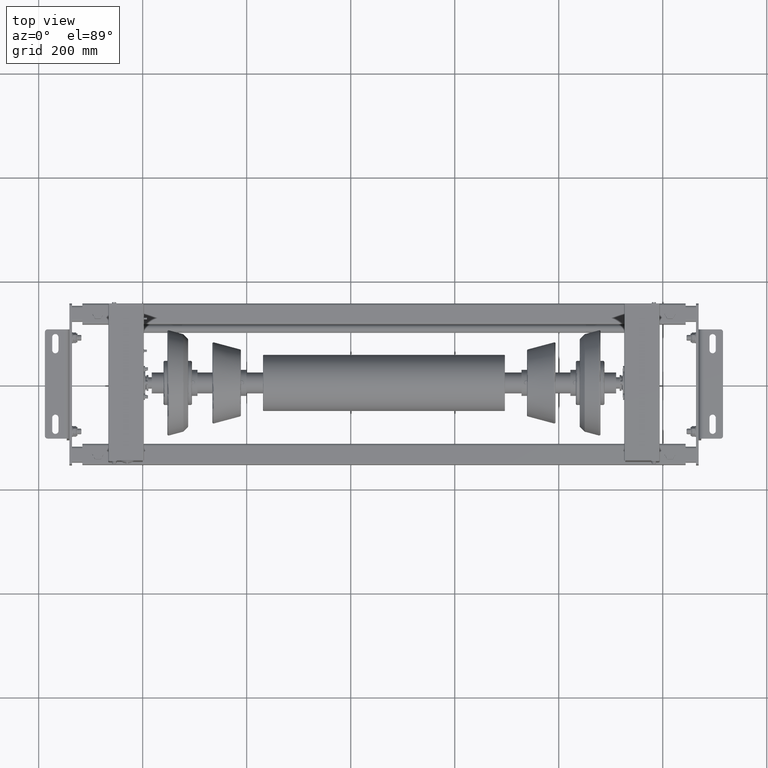
[diagram: clean part render]
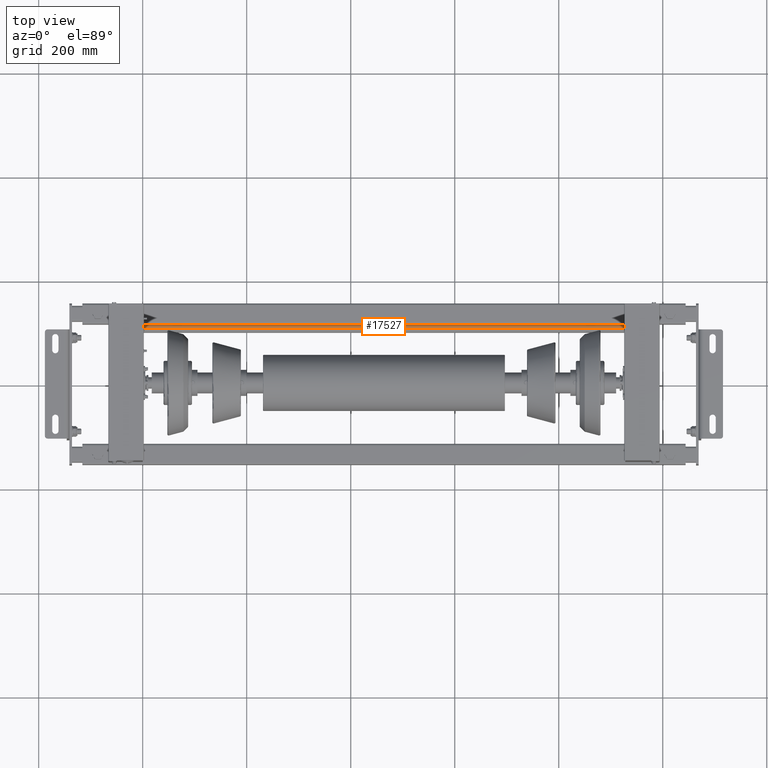
[diagram: same view with one face highlighted and labeled with its STEP entity id]
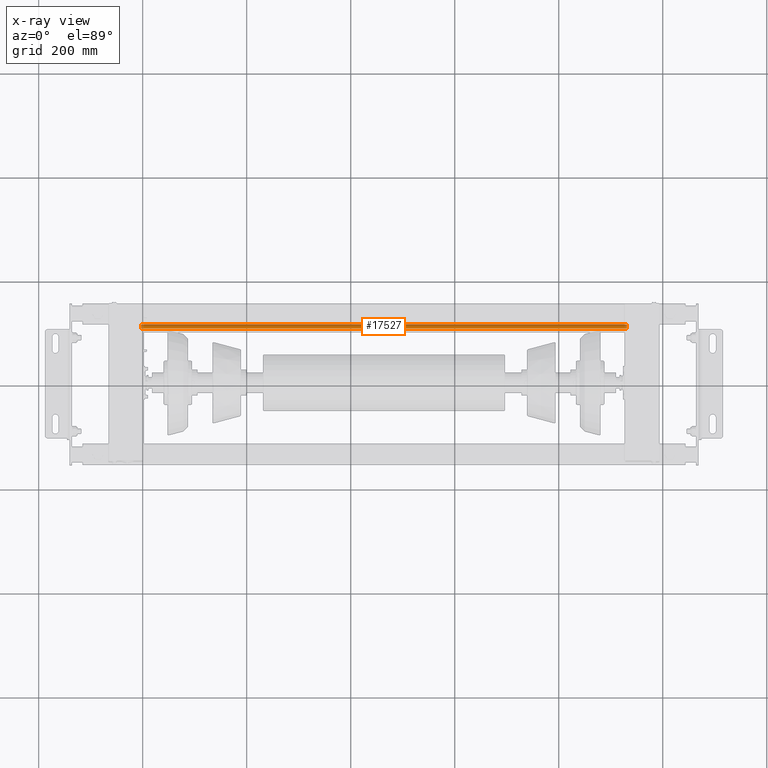
[diagram: x-ray of the same camera — body ghosted, the highlighted face saturated]
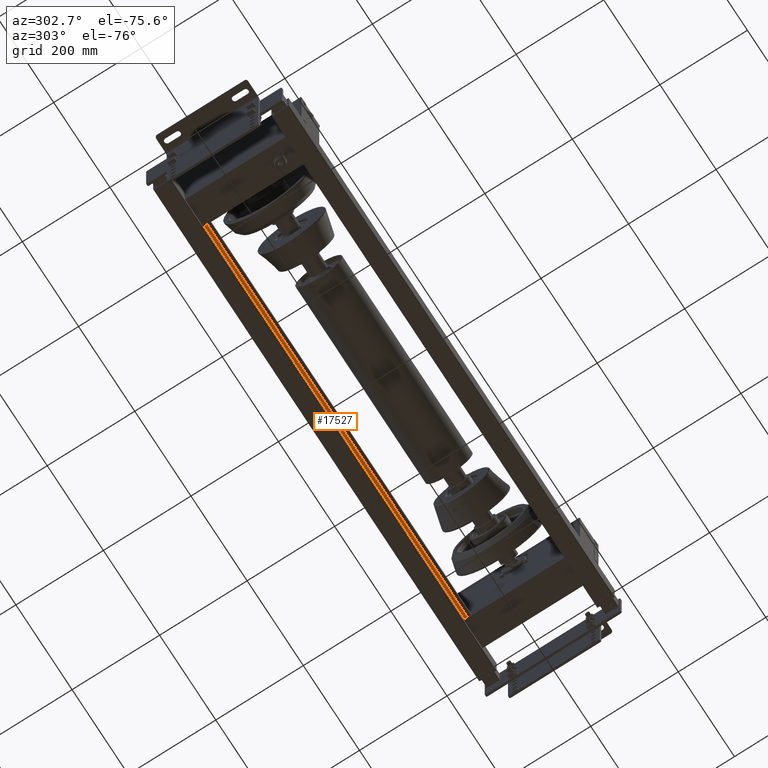
[diagram: same view with one face highlighted and labeled with its STEP entity id]
A machine part, top view. The second image highlights one B-rep face of the part: STEP entity #17527.
The next image is the same camera in x-ray: the body ghosted, the highlighted face saturated — about 1% of this face is hidden behind the body in this view.
A second angle (auxiliary view) of the same face is appended — the face is thin or edge-on in the first view.
In plain terms, the highlighted cylindrical surface (edge-blend (fillet) strip) has radius 8 mm, axis along (1, 0, -0).
Its self-contained STEP definition (entity closure, byte-faithful):
#17467=CARTESIAN_POINT('',(8.0,0.0,609.0));
#17468=VERTEX_POINT('',#17467);
#17469=CARTESIAN_POINT('',(8.0,0.0,-325.0));
#17470=VERTEX_POINT('',#17469);
#17471=CARTESIAN_POINT('',(8.0,0.0,609.0));
#17472=DIRECTION('',(0.0,0.0,-1.0));
#17473=VECTOR('',#17472,934.0);
#17474=LINE('',#17471,#17473);
#17475=EDGE_CURVE('',#17468,#17470,#17474,.T.);
#17477=CARTESIAN_POINT('',(-8.0,-9.797174E-016,609.0));
#17478=VERTEX_POINT('',#17477);
#17486=CARTESIAN_POINT('',(-8.0,-9.797174E-016,-325.0));
#17487=VERTEX_POINT('',#17486);
#17488=CARTESIAN_POINT('',(-8.0,-9.797174E-016,609.0));
#17489=DIRECTION('',(0.0,0.0,-1.0));
#17490=VECTOR('',#17489,934.0);
#17491=LINE('',#17488,#17490);
#17492=EDGE_CURVE('',#17478,#17487,#17491,.T.);
#17504=CARTESIAN_POINT('',(0.0,0.0,-325.0));
#17505=DIRECTION('',(0.0,0.0,1.0));
#17506=DIRECTION('',(1.0,0.0,0.0));
#17507=AXIS2_PLACEMENT_3D('',#17504,#17505,#17506);
#17508=CYLINDRICAL_SURFACE('',#17507,8.0);
#17509=ORIENTED_EDGE('',*,*,#17475,.T.);
#17510=CARTESIAN_POINT('',(0.0,0.0,-325.0));
#17511=DIRECTION('',(0.0,0.0,1.0));
#17512=DIRECTION('',(1.0,0.0,0.0));
#17513=AXIS2_PLACEMENT_3D('',#17510,#17511,#17512);
#17514=CIRCLE('',#17513,8.0);
#17515=EDGE_CURVE('',#17470,#17487,#17514,.T.);
#17516=ORIENTED_EDGE('',*,*,#17515,.T.);
#17517=ORIENTED_EDGE('',*,*,#17492,.F.);
#17518=CARTESIAN_POINT('',(0.0,0.0,609.0));
#17519=DIRECTION('',(0.0,0.0,-1.0));
#17520=DIRECTION('',(1.0,0.0,0.0));
#17521=AXIS2_PLACEMENT_3D('',#17518,#17519,#17520);
#17522=CIRCLE('',#17521,8.0);
#17523=EDGE_CURVE('',#17478,#17468,#17522,.T.);
#17524=ORIENTED_EDGE('',*,*,#17523,.T.);
#17525=EDGE_LOOP('',(#17509,#17516,#17517,#17524));
#17526=FACE_OUTER_BOUND('',#17525,.T.);
#17527=ADVANCED_FACE('',(#17526),#17508,.T.);